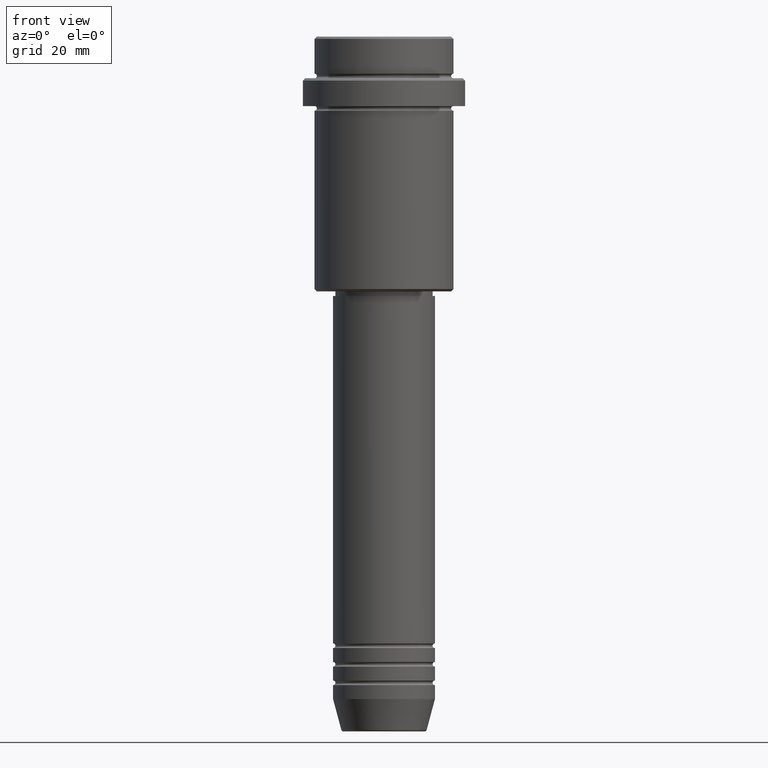
[diagram: clean part render]
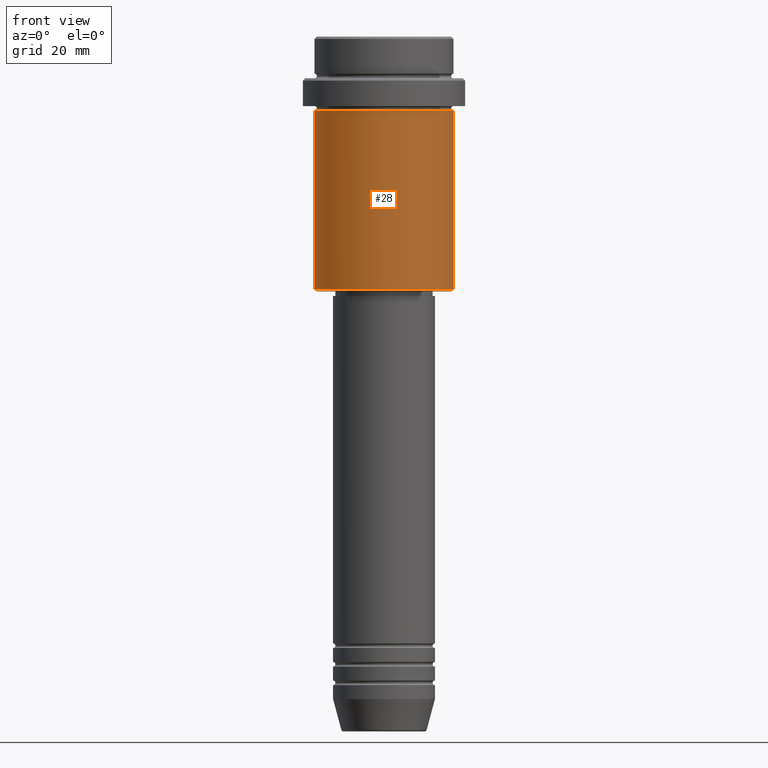
[diagram: same view with one face highlighted and labeled with its STEP entity id]
A machine part, front view. The second image highlights one B-rep face of the part: STEP entity #28.
In plain terms, the highlighted cylindrical surface (partial cylindrical patch) has radius 15 mm, axis along (-0, -0, 1).
Its self-contained STEP definition (entity closure, byte-faithful):
#4 = VERTEX_POINT ( 'NONE', #124 ) ;
#28 = ADVANCED_FACE ( 'NONE', ( #633 ), #275, .T. ) ;
#95 = DIRECTION ( 'NONE',  ( -0.000000000000000000, -0.000000000000000000, 1.000000000000000000 ) ) ;
#124 = CARTESIAN_POINT ( 'NONE',  ( 15.00000000000000178, 0.000000000000000000, -15.99999999999997335 ) ) ;
#219 = VERTEX_POINT ( 'NONE', #412 ) ;
#259 = EDGE_CURVE ( 'NONE', #219, #755, #888, .T. ) ;
#275 = CYLINDRICAL_SURFACE ( 'NONE', #329, 15.00000000000000000 ) ;
#280 = CARTESIAN_POINT ( 'NONE',  ( 0.000000000000000000, 0.000000000000000000, -15.99999999999997335 ) ) ;
#288 = EDGE_LOOP ( 'NONE', ( #535, #784, #418, #675 ) ) ;
#329 = AXIS2_PLACEMENT_3D ( 'NONE', #1055, #1153, #627 ) ;
#340 = VECTOR ( 'NONE', #389, 1000.000000000000000 ) ;
#360 = VECTOR ( 'NONE', #461, 1000.000000000000000 ) ;
#389 = DIRECTION ( 'NONE',  ( -0.000000000000000000, -0.000000000000000000, 1.000000000000000000 ) ) ;
#412 = CARTESIAN_POINT ( 'NONE',  ( -15.00000000000000000, 1.836970198721029589E-15, -54.49999999999999289 ) ) ;
#418 = ORIENTED_EDGE ( 'NONE', *, *, #837, .T. ) ;
#461 = DIRECTION ( 'NONE',  ( -0.000000000000000000, -0.000000000000000000, 1.000000000000000000 ) ) ;
#473 = LINE ( 'NONE', #939, #340 ) ;
#535 = ORIENTED_EDGE ( 'NONE', *, *, #1064, .F. ) ;
#575 = CARTESIAN_POINT ( 'NONE',  ( -15.00000000000000355, 1.836970198721029983E-15, -15.99999999999997335 ) ) ;
#578 = LINE ( 'NONE', #1107, #360 ) ;
#627 = DIRECTION ( 'NONE',  ( 1.000000000000000000, 0.000000000000000000, 0.000000000000000000 ) ) ;
#633 = FACE_OUTER_BOUND ( 'NONE', #288, .T. ) ;
#641 = CARTESIAN_POINT ( 'NONE',  ( 0.000000000000000000, 0.000000000000000000, -54.49999999999999289 ) ) ;
#675 = ORIENTED_EDGE ( 'NONE', *, *, #1225, .F. ) ;
#755 = VERTEX_POINT ( 'NONE', #1287 ) ;
#784 = ORIENTED_EDGE ( 'NONE', *, *, #259, .T. ) ;
#824 = AXIS2_PLACEMENT_3D ( 'NONE', #280, #95, #1072 ) ;
#837 = EDGE_CURVE ( 'NONE', #755, #4, #578, .T. ) ;
#838 = DIRECTION ( 'NONE',  ( -1.000000000000000000, 0.000000000000000000, 0.000000000000000000 ) ) ;
#888 = CIRCLE ( 'NONE', #1210, 15.00000000000000000 ) ;
#939 = CARTESIAN_POINT ( 'NONE',  ( -15.00000000000000000, 1.836970198721029589E-15, 0.000000000000000000 ) ) ;
#1055 = CARTESIAN_POINT ( 'NONE',  ( 0.000000000000000000, 0.000000000000000000, 0.000000000000000000 ) ) ;
#1064 = EDGE_CURVE ( 'NONE', #219, #1260, #473, .T. ) ;
#1072 = DIRECTION ( 'NONE',  ( 1.000000000000000000, 0.000000000000000000, 0.000000000000000000 ) ) ;
#1101 = CIRCLE ( 'NONE', #824, 15.00000000000000178 ) ;
#1107 = CARTESIAN_POINT ( 'NONE',  ( 15.00000000000000000, 0.000000000000000000, 0.000000000000000000 ) ) ;
#1153 = DIRECTION ( 'NONE',  ( -0.000000000000000000, -0.000000000000000000, 1.000000000000000000 ) ) ;
#1210 = AXIS2_PLACEMENT_3D ( 'NONE', #641, #1365, #838 ) ;
#1225 = EDGE_CURVE ( 'NONE', #1260, #4, #1101, .T. ) ;
#1260 = VERTEX_POINT ( 'NONE', #575 ) ;
#1287 = CARTESIAN_POINT ( 'NONE',  ( 15.00000000000000000, 0.000000000000000000, -54.49999999999999289 ) ) ;
#1365 = DIRECTION ( 'NONE',  ( -0.000000000000000000, -0.000000000000000000, 1.000000000000000000 ) ) ;